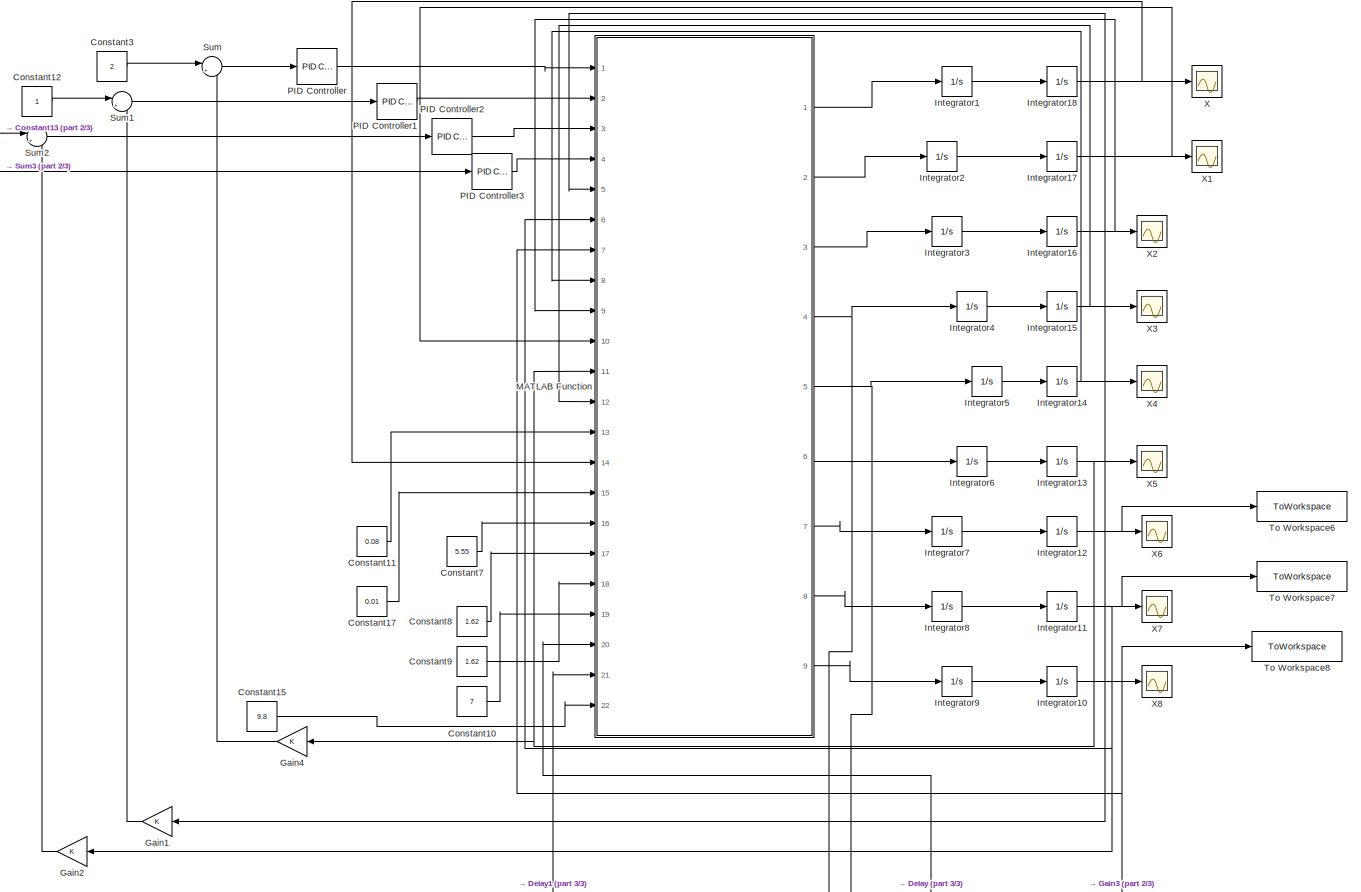
[diagram: root canvas - part 1/3, most of the canvas]
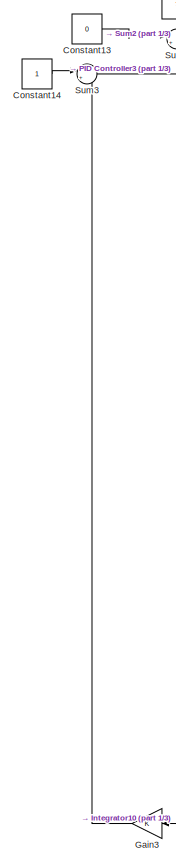
[diagram: root canvas - part 2/3, left side, full height]
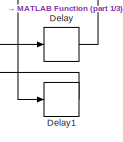
[diagram: root canvas - part 3/3, bottom right region]
MODEL slx_f5b6d4fa1c46
KIND model
CONFIG AbsTol = auto
CONFIG EnableMultiTasking = off
CONFIG FixedStep = auto
CONFIG MaxStep = auto
CONFIG MinStep = auto
CONFIG RelTol = 1e-3
CONFIG SampleTimeConstraint = Unconstrained
CONFIG SolverName = VariableStepAuto
CONFIG StartTime = 0.0
CONFIG StopTime = 5
BLOCK [Constant] Constant10
  Value = 7
BLOCK [Constant] Constant11
  Value = 0.08
BLOCK [Constant] Constant12
BLOCK [Constant] Constant13
  Value = 0
BLOCK [Constant] Constant14
BLOCK [Constant] Constant15
  Value = 9.8
BLOCK [Constant] Constant17
  Value = 0.01
BLOCK [Constant] Constant3
  Value = 2
BLOCK [Constant] Constant7
  Value = 5.55
BLOCK [Constant] Constant8
  Value = 1.62
BLOCK [Constant] Constant9
  Value = 1.62
BLOCK [Delay] Delay
  DelayLength = 1
  InitialCondition = 0
  InputPortMap = u0
  Ports = [1, 1]
BLOCK [Delay] Delay1
  DelayLength = 1
  InitialCondition = 0
  InputPortMap = u0
  Ports = [1, 1]
BLOCK [Gain] Gain1
  NameLocation = top
BLOCK [Gain] Gain2
  NameLocation = top
BLOCK [Gain] Gain3
  NameLocation = top
BLOCK [Gain] Gain4
  NameLocation = top
BLOCK [Integrator] Integrator1
  Ports = [1, 1]
BLOCK [Integrator] Integrator10
  Ports = [1, 1]
BLOCK [Integrator] Integrator11
  Ports = [1, 1]
BLOCK [Integrator] Integrator12
  Ports = [1, 1]
BLOCK [Integrator] Integrator13
  Ports = [1, 1]
BLOCK [Integrator] Integrator14
  Ports = [1, 1]
BLOCK [Integrator] Integrator15
  Ports = [1, 1]
BLOCK [Integrator] Integrator16
  Ports = [1, 1]
BLOCK [Integrator] Integrator17
  Ports = [1, 1]
BLOCK [Integrator] Integrator18
  Ports = [1, 1]
BLOCK [Integrator] Integrator2
  Ports = [1, 1]
BLOCK [Integrator] Integrator3
  Ports = [1, 1]
BLOCK [Integrator] Integrator4
  Ports = [1, 1]
BLOCK [Integrator] Integrator5
  Ports = [1, 1]
BLOCK [Integrator] Integrator6
  Ports = [1, 1]
BLOCK [Integrator] Integrator7
  Ports = [1, 1]
BLOCK [Integrator] Integrator8
  Ports = [1, 1]
BLOCK [Integrator] Integrator9
  Ports = [1, 1]
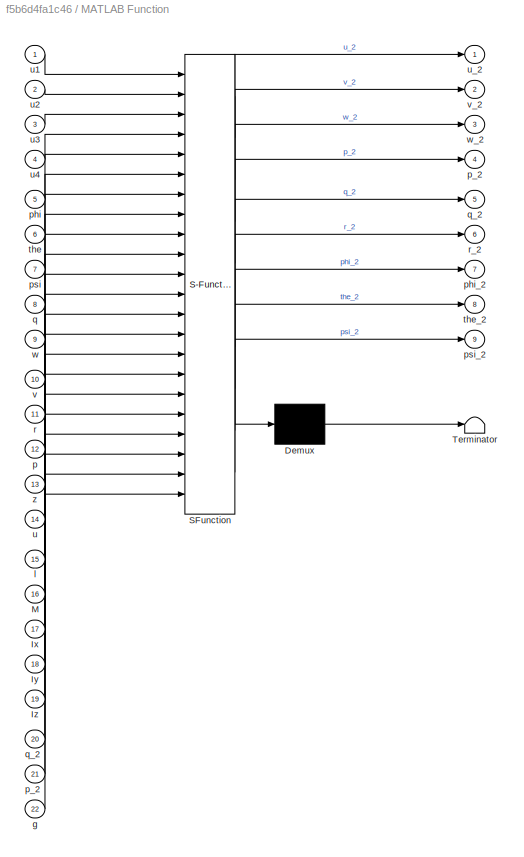
BLOCK [SubSystem] MATLAB Function
  ErrorFcn = Stateflow.Translate.translate
  PermitHierarchicalResolution = ExplicitOnly
  Ports = [22, 9]
  RequestExecContextInheritance = off
  SFBlockType = MATLAB Function
  TreatAsAtomicUnit = on
BLOCK [Demux] MATLAB Function/ Demux 
  Outputs = 1
  Ports = [1, 1]
BLOCK [S-Function] MATLAB Function/ SFunction 
  EnableBusSupport = on
  FunctionName = sf_sfun
  PortCounts = [22 10]
  Ports = [22, 10]
  SFcnIsStateOwnerBlock = off
  SFunctionDeploymentMode = off
  Tag = Stateflow S-Function 2
BLOCK [Terminator] MATLAB Function/ Terminator 
BLOCK [Inport] MATLAB Function/Ix
  Port = 17
BLOCK [Inport] MATLAB Function/Iy
  Port = 18
BLOCK [Inport] MATLAB Function/Iz
  Port = 19
BLOCK [Inport] MATLAB Function/M
  Port = 16
BLOCK [Inport] MATLAB Function/g
  Port = 22
BLOCK [Inport] MATLAB Function/l
  Port = 15
BLOCK [Inport] MATLAB Function/p
  Port = 12
BLOCK [Outport] MATLAB Function/p_2
  Port = 4
BLOCK [Inport] MATLAB Function/p_2 
  Port = 21
BLOCK [Inport] MATLAB Function/phi
  Port = 5
BLOCK [Outport] MATLAB Function/phi_2
  Port = 7
BLOCK [Inport] MATLAB Function/psi
  Port = 7
BLOCK [Outport] MATLAB Function/psi_2
  Port = 9
BLOCK [Inport] MATLAB Function/q
  Port = 8
BLOCK [Outport] MATLAB Function/q_2
  Port = 5
BLOCK [Inport] MATLAB Function/q_2 
  Port = 20
BLOCK [Inport] MATLAB Function/r
  Port = 11
BLOCK [Outport] MATLAB Function/r_2
  Port = 6
BLOCK [Inport] MATLAB Function/the
  Port = 6
BLOCK [Outport] MATLAB Function/the_2
  Port = 8
BLOCK [Inport] MATLAB Function/u
  Port = 14
BLOCK [Inport] MATLAB Function/u1
BLOCK [Inport] MATLAB Function/u2
  Port = 2
BLOCK [Inport] MATLAB Function/u3
  Port = 3
BLOCK [Inport] MATLAB Function/u4
  Port = 4
BLOCK [Outport] MATLAB Function/u_2
BLOCK [Inport] MATLAB Function/v
  Port = 10
BLOCK [Outport] MATLAB Function/v_2
  Port = 2
BLOCK [Inport] MATLAB Function/w
  Port = 9
BLOCK [Outport] MATLAB Function/w_2
  Port = 3
BLOCK [Inport] MATLAB Function/z
  Port = 13
BLOCK [Reference] PID Controller  REF=pid_lib/PID Controller
  Ports = [1, 1]
  SourceBlock = pid_lib/PID Controller
  SourceProductBaseCode = SL
  SourceType = PID 1dof
BLOCK [Reference] PID Controller1  REF=pid_lib/PID Controller
  Ports = [1, 1]
  SourceBlock = pid_lib/PID Controller
  SourceProductBaseCode = SL
  SourceType = PID 1dof
BLOCK [Reference] PID Controller2  REF=pid_lib/PID Controller
  Ports = [1, 1]
  SourceBlock = pid_lib/PID Controller
  SourceProductBaseCode = SL
  SourceType = PID 1dof
BLOCK [Reference] PID Controller3  REF=pid_lib/PID Controller
  Ports = [1, 1]
  SourceBlock = pid_lib/PID Controller
  SourceProductBaseCode = SL
  SourceType = PID 1dof
BLOCK [Sum] Sum
  Inputs = |+-
  Ports = [2, 1]
BLOCK [Sum] Sum1
  Inputs = |+-
  Ports = [2, 1]
BLOCK [Sum] Sum2
  Inputs = |+-
  Ports = [2, 1]
BLOCK [Sum] Sum3
  Inputs = |+-
  Ports = [2, 1]
BLOCK [ToWorkspace] To Workspace6
  FixptAsFi = on
  MaxDataPoints = inf
  Ports = [1]
  SampleTime = -1
  SaveFormat = Timeseries
  VariableName = simout6
BLOCK [ToWorkspace] To Workspace7
  FixptAsFi = on
  MaxDataPoints = inf
  Ports = [1]
  SampleTime = -1
  SaveFormat = Timeseries
  VariableName = simout7
BLOCK [ToWorkspace] To Workspace8
  FixptAsFi = on
  MaxDataPoints = inf
  Ports = [1]
  SampleTime = -1
  SaveFormat = Timeseries
  VariableName = simout8
BLOCK [Scope] X
  Floating = off
  NumInputPorts = 1
  Ports = [1]
  ScopeSpecificationString = Simulink.scopes.TimeScopeBlockCfg('CurrentConfiguration', extmgr.ConfigurationSet(extmgr.Configuration('Core','General UI',true),extmgr.Configuration('Core','Source UI',true),extmgr.Configuration('Sources','WiredSimulink',true),extmgr.Configuration('Visuals','Time Domain',true,'SerializedDisplays',{struct('MinYLimReal','-8915027232374098143548227633621799518450036506624.00000','MaxYLimReal','80235...<+1743ch>
BLOCK [Scope] X1
  Floating = off
  NumInputPorts = 1
  Ports = [1]
  ScopeSpecificationString = Simulink.scopes.TimeScopeBlockCfg('CurrentConfiguration', extmgr.ConfigurationSet(extmgr.Configuration('Core','General UI',true),extmgr.Configuration('Core','Source UI',true),extmgr.Configuration('Sources','WiredSimulink',true,'DataLoggingVariableName','ScopeData1'),extmgr.Configuration('Visuals','Time Domain',true,'SerializedDisplays',{struct('MinYLimReal','-29113734654882885131689412766717776340...<+3399ch>
BLOCK [Scope] X2
  Floating = off
  NumInputPorts = 1
  Ports = [1]
  ScopeSpecificationString = Simulink.scopes.TimeScopeBlockCfg('CurrentConfiguration', extmgr.ConfigurationSet(extmgr.Configuration('Core','General UI',true),extmgr.Configuration('Core','Source UI',true),extmgr.Configuration('Sources','WiredSimulink',true,'DataLoggingVariableName','ScopeData2'),extmgr.Configuration('Visuals','Time Domain',true,'SerializedDisplays',{struct('MinYLimReal','-82708047748080771026569275445293802626...<+1735ch>
BLOCK [Scope] X3
  Floating = off
  NumInputPorts = 1
  Ports = [1]
  ScopeSpecificationString = Simulink.scopes.TimeScopeBlockCfg('CurrentConfiguration', extmgr.ConfigurationSet(extmgr.Configuration('Core','General UI',true),extmgr.Configuration('Core','Source UI',true),extmgr.Configuration('Sources','WiredSimulink',true,'DataLoggingVariableName','ScopeData3'),extmgr.Configuration('Visuals','Time Domain',true,'SerializedDisplays',{struct('MinYLimReal','-27674644569291884007818566742666578031...<+3416ch>
BLOCK [Scope] X4
  Floating = off
  NumInputPorts = 1
  Ports = [1]
  ScopeSpecificationString = Simulink.scopes.TimeScopeBlockCfg('CurrentConfiguration', extmgr.ConfigurationSet(extmgr.Configuration('Core','General UI',true),extmgr.Configuration('Core','Source UI',true),extmgr.Configuration('Sources','WiredSimulink',true,'DataLoggingVariableName','ScopeData4'),extmgr.Configuration('Visuals','Time Domain',true,'SerializedDisplays',{struct('MinYLimReal','-10376614115711512599582776001215271036...<+1761ch>
BLOCK [Scope] X5
  Floating = off
  NumInputPorts = 1
  Ports = [1]
  ScopeSpecificationString = Simulink.scopes.TimeScopeBlockCfg('CurrentConfiguration', extmgr.ConfigurationSet(extmgr.Configuration('Core','General UI',true),extmgr.Configuration('Core','Source UI',true),extmgr.Configuration('Sources','WiredSimulink',true,'DataLoggingVariableName','ScopeData5'),extmgr.Configuration('Visuals','Time Domain',true,'SerializedDisplays',{struct('MinYLimReal','-11675798369361056576588995087990604201...<+1757ch>
BLOCK [Scope] X6
  Floating = off
  NumInputPorts = 1
  Ports = [1]
  ScopeSpecificationString = Simulink.scopes.TimeScopeBlockCfg('CurrentConfiguration', extmgr.ConfigurationSet(extmgr.Configuration('Core','General UI',true),extmgr.Configuration('Core','Source UI',true),extmgr.Configuration('Sources','WiredSimulink',true,'DataLoggingVariableName','ScopeData6'),extmgr.Configuration('Visuals','Time Domain',true,'SerializedDisplays',{struct('MinYLimReal','-0.1444','MaxYLimReal','1.29963','YLabe...<+1715ch>
BLOCK [Scope] X7
  Floating = off
  NumInputPorts = 1
  Ports = [1]
  ScopeSpecificationString = Simulink.scopes.TimeScopeBlockCfg('CurrentConfiguration', extmgr.ConfigurationSet(extmgr.Configuration('Core','General UI',true),extmgr.Configuration('Core','Source UI',true),extmgr.Configuration('Sources','WiredSimulink',true,'DataLoggingVariableName','ScopeData7'),extmgr.Configuration('Visuals','Time Domain',true,'SerializedDisplays',{struct('MinYLimReal','-1.00000','MaxYLimReal','1.00000','YLab...<+1396ch>
BLOCK [Scope] X8
  Floating = off
  NumInputPorts = 1
  Ports = [1]
  ScopeSpecificationString = Simulink.scopes.TimeScopeBlockCfg('CurrentConfiguration', extmgr.ConfigurationSet(extmgr.Configuration('Core','General UI',true),extmgr.Configuration('Core','Source UI',true),extmgr.Configuration('Sources','WiredSimulink',true,'DataLoggingVariableName','ScopeData8'),extmgr.Configuration('Visuals','Time Domain',true,'SerializedDisplays',{struct('MinYLimReal','-0.13885','MaxYLimReal','1.24965','YLab...<+1799ch>
LINE Constant10:1 -> MATLAB Function:19
LINE Constant11:1 -> MATLAB Function:13
LINE Constant12:1 -> Sum1:1
LINE Constant13:1 -> Sum2:1
LINE Constant14:1 -> Sum3:1
LINE Constant15:1 -> MATLAB Function:22
LINE Constant17:1 -> MATLAB Function:15
LINE Constant3:1 -> Sum:1
LINE Constant7:1 -> MATLAB Function:16
LINE Constant8:1 -> MATLAB Function:17
LINE Constant9:1 -> MATLAB Function:18
LINE Delay1:1 -> MATLAB Function:21
LINE Delay:1 -> MATLAB Function:20
LINE Gain1:1 -> Sum1:2
LINE Gain2:1 -> Sum2:2
LINE Gain3:1 -> Sum3:2
LINE Gain4:1 -> Sum:2
NET Integrator10:1 -> Gain3:1, MATLAB Function:7, To Workspace8:1, X8:1
NET Integrator11:1 -> Gain2:1, MATLAB Function:6, To Workspace7:1, X7:1
NET Integrator12:1 -> Gain1:1, MATLAB Function:5, To Workspace6:1, X6:1
NET Integrator13:1 -> Gain4:1, MATLAB Function:11, X5:1
NET Integrator14:1 -> MATLAB Function:8, X4:1
NET Integrator15:1 -> MATLAB Function:12, X3:1
NET Integrator16:1 -> MATLAB Function:9, X2:1
NET Integrator17:1 -> MATLAB Function:10, X1:1
NET Integrator18:1 -> MATLAB Function:14, X:1
LINE Integrator1:1 -> Integrator18:1
LINE Integrator2:1 -> Integrator17:1
LINE Integrator3:1 -> Integrator16:1
LINE Integrator4:1 -> Integrator15:1
LINE Integrator5:1 -> Integrator14:1
LINE Integrator6:1 -> Integrator13:1
LINE Integrator7:1 -> Integrator12:1
LINE Integrator8:1 -> Integrator11:1
LINE Integrator9:1 -> Integrator10:1
LINE MATLAB Function:1 -> Integrator1:1
LINE MATLAB Function:2 -> Integrator2:1
LINE MATLAB Function:3 -> Integrator3:1
NET MATLAB Function:4 -> Delay:1, Integrator4:1
NET MATLAB Function:5 -> Delay1:1, Integrator5:1
LINE MATLAB Function:6 -> Integrator6:1
LINE MATLAB Function:7 -> Integrator7:1
LINE MATLAB Function:8 -> Integrator8:1
LINE MATLAB Function:9 -> Integrator9:1
LINE PID Controller1:1 -> MATLAB Function:2
LINE PID Controller2:1 -> MATLAB Function:3
LINE PID Controller3:1 -> MATLAB Function:4
LINE PID Controller:1 -> MATLAB Function:1
LINE Sum1:1 -> PID Controller1:1
LINE Sum2:1 -> PID Controller2:1
LINE Sum3:1 -> PID Controller3:1
LINE Sum:1 -> PID Controller:1
note: NET lines group one-source signal fan-out (src -> all destinations, sorted); 1:1 wires keep LINE
CHART MATLAB Function states=1 transitions=1
  STATE_LABEL 'eML_blk_kernel()'
  STATE_LABEL 'SCRIPT:\nfunction [u_2, v_2,w_2,p_2,q_2,r_2,phi_2,the_2,psi_2]=wurenji(u1,u2,u3,u4,phi,the,psi,q,w,v,r,p,z,u,l,M,Ix,Iy,Iz,q_2,p_2,g)\nu_2=u1*(cos(phi)*sin(the)*cos(psi)+sin(phi)*sin(psi))/M-2*(q*w-v*r)-(q_2+p*r)*z;\nv_2=u1*(cos(phi)*sin(the)*cos(psi)-sin(phi)*sin(psi))/M-2*(r*u-w*p)-(-p_2+q-r)-z;\nw_2=-g+u1*(cos(the)*cos(phi))/M-2*(p*v-u*q)+(p*p+q*q)*z;\nphi_2=1*u2/Ix;%俯仰\nthe_2=1*u3/Iy;%偏航\npsi_2=u4*l/I...<+186ch>'
CHART  states=0 transitions=0
